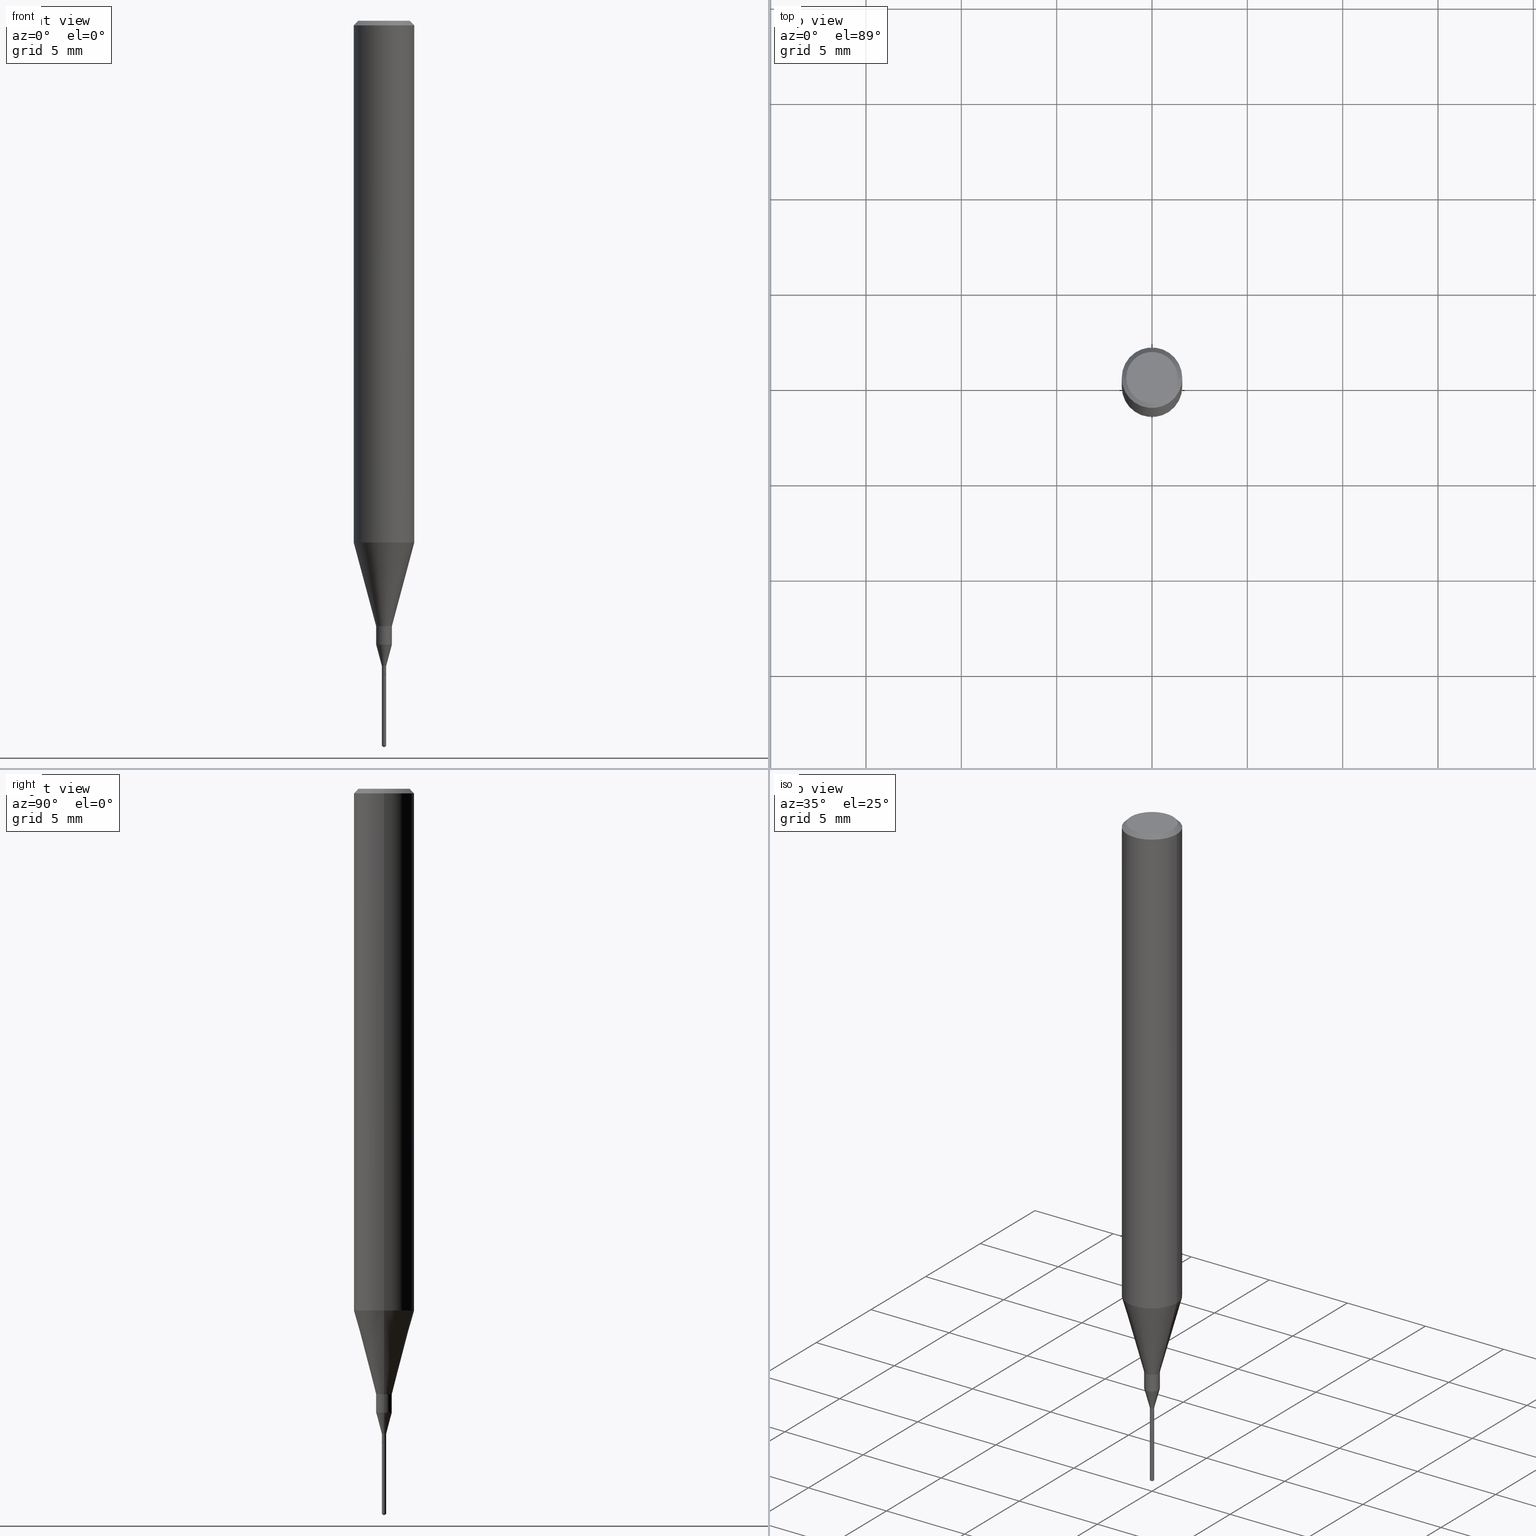
[diagram: canonical four-view strip — front | top / right | iso, engineering-drawing reading convention]
A machine part, canonical four-view strip (front | top / right | iso — engineering-drawing reading convention). The complete STEP part file that produces these views, byte-faithful:
ISO-10303-21;
HEADER;
FILE_DESCRIPTION (( 'STEP AP203' ),
    '1' );
FILE_NAME ('07251.STEP',
    '2024-04-19T13:30:23',
    ( '' ),
    ( '' ),
    'SwSTEP 2.0',
    'SolidWorks 2023',
    '' );
FILE_SCHEMA (( 'CONFIG_CONTROL_DESIGN' ));
ENDSEC;

DATA;
#1 = CARTESIAN_POINT ( 'NONE',  ( -0.06250000000000006939, 4.440892098500631092E-16, -3.074334431409319267E-30 ) ) ;
#2 = EDGE_CURVE ( 'NONE', #351, #134, #300, .T. ) ;
#3 = CARTESIAN_POINT ( 'NONE',  ( 3.662453960694578049E-29, -5.227175959681922416E-15, -1.497386256307230434 ) ) ;
#4 = DIRECTION ( 'NONE',  ( 1.000000000000000000, -6.982962677686288799E-15, 0.000000000000000000 ) ) ;
#5 = ORIENTED_EDGE ( 'NONE', *, *, #77, .T. ) ;
#6 = CARTESIAN_POINT ( 'NONE',  ( 2.634730117954813298E-29, -3.761696332605275695E-15, -1.077392650149939346 ) ) ;
#7 = CONICAL_SURFACE ( 'NONE', #142, 0.01625000000000000056, 0.2617993877991502405 ) ;
#8 = CARTESIAN_POINT ( 'NONE',  ( 3.300160153946842277E-29, -4.711754066768825092E-15, -1.349500000000000144 ) ) ;
#9 = CALENDAR_DATE ( 2024, 19, 4 ) ;
#10 = AXIS2_PLACEMENT_3D ( 'NONE', #449, #31, #233 ) ;
#11 = DIRECTION ( 'NONE',  ( 0.2588190451025214611, 1.565188264969621573E-15, 0.9659258262890682012 ) ) ;
#12 = CC_DESIGN_APPROVAL ( #526, ( #346 ) ) ;
#13 = ORIENTED_EDGE ( 'NONE', *, *, #156, .T. ) ;
#14 = DATE_TIME_ROLE ( 'creation_date' ) ;
#15 = EDGE_CURVE ( 'NONE', #275, #447, #563, .T. ) ;
#16 = DIRECTION ( 'NONE',  ( -2.445468806185136597E-29, 3.491481338843145583E-15, 1.000000000000000000 ) ) ;
#17 = EDGE_CURVE ( 'NONE', #530, #30, #250, .T. ) ;
#18 = DIRECTION ( 'NONE',  ( -2.445468806185136597E-29, 3.491481338843145583E-15, 1.000000000000000000 ) ) ;
#19 = DIRECTION ( 'NONE',  ( -2.445468806185136597E-29, 3.491481338843145583E-15, 1.000000000000000000 ) ) ;
#20 = DIRECTION ( 'NONE',  ( -2.445468806185136597E-29, 3.491481338843145583E-15, 1.000000000000000000 ) ) ;
#21 = ORIENTED_EDGE ( 'NONE', *, *, #193, .T. ) ;
#22 = ADVANCED_FACE ( 'NONE', ( #248 ), #409, .T. ) ;
#23 = AXIS2_PLACEMENT_3D ( 'NONE', #170, #64, #529 ) ;
#24 = CARTESIAN_POINT ( 'NONE',  ( 0.000000000000000000, 0.000000000000000000, 0.000000000000000000 ) ) ;
#25 = ORIENTED_EDGE ( 'NONE', *, *, #143, .F. ) ;
#26 = CLOSED_SHELL ( 'NONE', ( #521, #35, #270, #98, #556 ) ) ;
#27 = DIRECTION ( 'NONE',  ( 1.000000000000000000, -6.982962677686258033E-15, 0.000000000000000000 ) ) ;
#28 = AXIS2_PLACEMENT_3D ( 'NONE', #259, #115, #212 ) ;
#29 = DIRECTION ( 'NONE',  ( -6.982962677686266711E-15, -1.000000000000000000, 0.000000000000000000 ) ) ;
#30 = VERTEX_POINT ( 'NONE', #522 ) ;
#31 = DIRECTION ( 'NONE',  ( -2.445468806185136597E-29, 3.491481338843145583E-15, 1.000000000000000000 ) ) ;
#32 = DIRECTION ( 'NONE',  ( -6.982962677686265922E-15, -1.000000000000000000, 3.468864327941382011E-15 ) ) ;
#33 = ORIENTED_EDGE ( 'NONE', *, *, #236, .T. ) ;
#34 = CARTESIAN_POINT ( 'NONE',  ( -0.003850000000000000124, -4.686143912111482596E-15, -1.350000000000000089 ) ) ;
#35 = ADVANCED_FACE ( 'NONE', ( #99 ), #330, .T. ) ;
#36 = LINE ( 'NONE', #226, #164 ) ;
#37 = EDGE_LOOP ( 'NONE', ( #13, #177, #476, #360 ) ) ;
#38 = COORDINATED_UNIVERSAL_TIME_OFFSET ( 5, 0, .BEHIND. ) ;
#39 = EDGE_CURVE ( 'NONE', #134, #175, #306, .T. ) ;
#40 = DIRECTION ( 'NONE',  ( -2.449828643397946418E-29, 3.485237803807878340E-15, 1.000000000000000000 ) ) ;
#41 = AXIS2_PLACEMENT_3D ( 'NONE', #201, #468, #51 ) ;
#42 = AXIS2_PLACEMENT_3D ( 'NONE', #590, #508, #443 ) ;
#43 =( NAMED_UNIT ( * ) SI_UNIT ( $, .STERADIAN. ) SOLID_ANGLE_UNIT ( ) );
#44 = CONICAL_SURFACE ( 'NONE', #462, 0.003850000000000000124, 0.7853981633975427590 ) ;
#45 = ADVANCED_FACE ( 'NONE', ( #104 ), #517, .F. ) ;
#46 = LENGTH_MEASURE_WITH_UNIT ( LENGTH_MEASURE( 0.02539999999999999897 ), #461 );
#47 = DIRECTION ( 'NONE',  ( 6.090539988449877043E-15, 0.8571673007021278767, 0.5150380749100279543 ) ) ;
#48 = FACE_OUTER_BOUND ( 'NONE', #417, .T. ) ;
#49 = ADVANCED_FACE ( 'NONE', ( #348 ), #72, .T. ) ;
#50 = APPROVAL_PERSON_ORGANIZATION ( #395, #441, #469 ) ;
#51 = DIRECTION ( 'NONE',  ( 1.000000000000000000, -6.982962677686319564E-15, 0.000000000000000000 ) ) ;
#52 = VECTOR ( 'NONE', #501, 39.37007874015748143 ) ;
#53 = CYLINDRICAL_SURFACE ( 'NONE', #28, 0.004349999999999999700 ) ;
#54 = APPLICATION_PROTOCOL_DEFINITION ( 'international standard', 'config_control_design', 1994, #437 ) ;
#55 = DIRECTION ( 'NONE',  ( 1.000000000000000000, -6.982962677686220168E-15, 0.000000000000000000 ) ) ;
#56 = ORIENTED_EDGE ( 'NONE', *, *, #313, .T. ) ;
#57 = EDGE_CURVE ( 'NONE', #163, #183, #267, .T. ) ;
#58 = PERSON_AND_ORGANIZATION_ROLE ( 'creator' ) ;
#59 = VECTOR ( 'NONE', #47, 39.37007874015748854 ) ;
#60 = CARTESIAN_POINT ( 'NONE',  ( 3.090860900560097019E-17, 0.004349999999994771244, -1.497386256307230434 ) ) ;
#61 = VERTEX_POINT ( 'NONE', #105 ) ;
#62 = ORIENTED_EDGE ( 'NONE', *, *, #87, .F. ) ;
#63 = AXIS2_PLACEMENT_3D ( 'NONE', #513, #152, #154 ) ;
#64 = DIRECTION ( 'NONE',  ( -2.445468806185136597E-29, 3.491481338843145583E-15, 1.000000000000000000 ) ) ;
#65 = ORIENTED_EDGE ( 'NONE', *, *, #385, .F. ) ;
#66 = EDGE_CURVE ( 'NONE', #134, #61, #255, .T. ) ;
#67 = DIRECTION ( 'NONE',  ( -1.000000000000000000, 6.982962677686265922E-15, -4.876176775795935793E-29 ) ) ;
#68 = CONICAL_SURFACE ( 'NONE', #458, 0.01625000000000000056, 0.2617993877991502405 ) ;
#69 = CARTESIAN_POINT ( 'NONE',  ( -0.01624999999999999709, -4.315555863073202717E-15, -1.250000000000000000 ) ) ;
#70 = ORIENTED_EDGE ( 'NONE', *, *, #566, .T. ) ;
#71 = CC_DESIGN_APPROVAL ( #441, ( #331 ) ) ;
#72 = CONICAL_SURFACE ( 'NONE', #564, 0.06250000000000012490, 0.2617993877991501295 ) ;
#73 = DIRECTION ( 'NONE',  ( 1.000000000000000000, -6.982962677686220168E-15, 0.000000000000000000 ) ) ;
#74 = ORIENTED_EDGE ( 'NONE', *, *, #475, .F. ) ;
#75 = AXIS2_PLACEMENT_3D ( 'NONE', #272, #20, #405 ) ;
#76 = EDGE_LOOP ( 'NONE', ( #389, #440, #571, #88 ) ) ;
#77 = EDGE_CURVE ( 'NONE', #530, #364, #188, .T. ) ;
#78 = FACE_OUTER_BOUND ( 'NONE', #575, .T. ) ;
#79 = ORIENTED_EDGE ( 'NONE', *, *, #510, .T. ) ;
#80 = FACE_OUTER_BOUND ( 'NONE', #37, .T. ) ;
#81 = DIRECTION ( 'NONE',  ( 2.445468806185136597E-29, -3.491481338843145583E-15, -1.000000000000000000 ) ) ;
#82 = ORIENTED_EDGE ( 'NONE', *, *, #375, .T. ) ;
#83 = SHAPE_DEFINITION_REPRESENTATION ( #102, #589 ) ;
#84 = AXIS2_PLACEMENT_3D ( 'NONE', #333, #459, #380 ) ;
#85 = CARTESIAN_POINT ( 'NONE',  ( 3.056836007731421306E-29, -4.364351673553932471E-15, -1.250000000000000000 ) ) ;
#86 = CARTESIAN_POINT ( 'NONE',  ( 3.301382888349935078E-29, -4.713499807438246596E-15, -1.350000000000000089 ) ) ;
#87 = EDGE_CURVE ( 'NONE', #583, #412, #242, .T. ) ;
#88 = ORIENTED_EDGE ( 'NONE', *, *, #350, .F. ) ;
#89 = DIRECTION ( 'NONE',  ( -2.445468806185136597E-29, 3.491481338843145583E-15, 1.000000000000000000 ) ) ;
#90 = CARTESIAN_POINT ( 'NONE',  ( 2.292627005798580623E-31, -3.273263755165470801E-17, -0.009375000000000062103 ) ) ;
#91 = VECTOR ( 'NONE', #244, 39.37007874015748143 ) ;
#92 = DIRECTION ( 'NONE',  ( 0.2588190451025215166, 1.565188264969620784E-15, 0.9659258262890679791 ) ) ;
#93 = DIRECTION ( 'NONE',  ( 0.7071067811865454633, -7.319954787623248157E-15, -0.7071067811865495711 ) ) ;
#94 = EDGE_CURVE ( 'NONE', #312, #281, #309, .T. ) ;
#95 = LINE ( 'NONE', #514, #204 ) ;
#96 = DIRECTION ( 'NONE',  ( 1.000000000000000000, -6.982962677686265922E-15, 4.876176775795935793E-29 ) ) ;
#97 = CARTESIAN_POINT ( 'NONE',  ( -0.01624999999999999709, 1.154631945610162595E-16, -7.993269521664220284E-31 ) ) ;
#98 = ADVANCED_FACE ( 'NONE', ( #394 ), #53, .T. ) ;
#99 = FACE_OUTER_BOUND ( 'NONE', #520, .T. ) ;
#100 = APPROVAL_STATUS ( 'not_yet_approved' ) ;
#101 = CARTESIAN_POINT ( 'NONE',  ( 0.06250000000000012490, -4.198131499960668153E-15, -1.077392650149939346 ) ) ;
#102 = PRODUCT_DEFINITION_SHAPE ( 'NONE', 'NONE',  #346 ) ;
#103 = ADVANCED_FACE ( 'NONE', ( #570 ), #217, .F. ) ;
#104 = FACE_OUTER_BOUND ( 'NONE', #232, .T. ) ;
#105 = CARTESIAN_POINT ( 'NONE',  ( 0.06250000000000012490, -4.198131499960668153E-15, -1.077392650149939346 ) ) ;
#106 = EDGE_LOOP ( 'NONE', ( #406, #301, #374, #357 ) ) ;
#107 = PERSON_AND_ORGANIZATION ( #117, #391 ) ;
#108 = ADVANCED_FACE ( 'NONE', ( #577 ), #148, .T. ) ;
#109 = CARTESIAN_POINT ( 'NONE',  ( 0.01624999999999999709, -4.477824817066334148E-15, -1.250000000000000000 ) ) ;
#110 = CARTESIAN_POINT ( 'NONE',  ( 2.292627005798580623E-31, -3.273263755165470801E-17, -0.009375000000000062103 ) ) ;
#111 = CIRCLE ( 'NONE', #84, 0.05312499999999999861 ) ;
#112 = CARTESIAN_POINT ( 'NONE',  ( -3.037588764789863254E-17, -0.004350000000005226422, -1.497386256307230434 ) ) ;
#113 = ORIENTED_EDGE ( 'NONE', *, *, #66, .F. ) ;
#114 = AXIS2_PLACEMENT_3D ( 'NONE', #85, #588, #4 ) ;
#115 = DIRECTION ( 'NONE',  ( -2.449828643397946418E-29, 3.485237803807878340E-15, 1.000000000000000000 ) ) ;
#116 = EDGE_LOOP ( 'NONE', ( #404, #33, #414, #303 ) ) ;
#117 = PERSON ( 'UNSPECIFIED', 'UNSPECIFIED', 'UNSPECIFIED', ('UNSPECIFIED'), ('UNSPECIFIED'), ('UNSPECIFIED') ) ;
#118 = APPROVAL_DATE_TIME ( #358, #441 ) ;
#119 = VECTOR ( 'NONE', #149, 39.37007874015748143 ) ;
#120 = DIRECTION ( 'NONE',  ( 1.000000000000000000, -6.982962677686264344E-15, 0.000000000000000000 ) ) ;
#121 = EDGE_LOOP ( 'NONE', ( #5, #294 ) ) ;
#122 = LOCAL_TIME ( 9, 30, 23.00000000000000000, #38 ) ;
#123 = CARTESIAN_POINT ( 'NONE',  ( 3.301382888349935078E-29, -4.713499807438246596E-15, -1.350000000000000089 ) ) ;
#124 = ORIENTED_EDGE ( 'NONE', *, *, #135, .T. ) ;
#125 = CC_DESIGN_PERSON_AND_ORGANIZATION_ASSIGNMENT ( #298, #390, ( #150 ) ) ;
#126 = PERSON_AND_ORGANIZATION ( #117, #391 ) ;
#127 = LINE ( 'NONE', #328, #553 ) ;
#128 = CIRCLE ( 'NONE', #576, 0.004350000000000050875 ) ;
#129 = ORIENTED_EDGE ( 'NONE', *, *, #537, .T. ) ;
#130 = DATE_TIME_ROLE ( 'classification_date' ) ;
#131 = DIRECTION ( 'NONE',  ( 1.000000000000000000, -6.982962677686351908E-15, 0.000000000000000000 ) ) ;
#132 = AXIS2_PLACEMENT_3D ( 'NONE', #223, #398, #120 ) ;
#133 = CARTESIAN_POINT ( 'NONE',  ( -0.004350000000000050875, -4.651342440450035600E-15, -1.332599999999999785 ) ) ;
#134 = VERTEX_POINT ( 'NONE', #109 ) ;
#135 = EDGE_CURVE ( 'NONE', #273, #30, #466, .T. ) ;
#136 = ORIENTED_EDGE ( 'NONE', *, *, #532, .F. ) ;
#137 = DIRECTION ( 'NONE',  ( -2.449828643397946418E-29, 3.485237803807878340E-15, 1.000000000000000000 ) ) ;
#138 = VERTEX_POINT ( 'NONE', #112 ) ;
#139 = PLANE ( 'NONE',  #296 ) ;
#140 = DIRECTION ( 'NONE',  ( -6.982962677686266711E-15, -1.000000000000000000, 0.000000000000000000 ) ) ;
#141 = DIRECTION ( 'NONE',  ( 6.982962677686265922E-15, 1.000000000000000000, -3.485237803807878340E-15 ) ) ;
#142 = AXIS2_PLACEMENT_3D ( 'NONE', #496, #365, #27 ) ;
#143 = EDGE_CURVE ( 'NONE', #61, #325, #482, .T. ) ;
#144 = AXIS2_PLACEMENT_3D ( 'NONE', #264, #18, #533 ) ;
#145 = CARTESIAN_POINT ( 'NONE',  ( 2.292627005798580623E-31, -3.273263755165470801E-17, -0.009375000000000062103 ) ) ;
#146 = LINE ( 'NONE', #291, #229 ) ;
#147 = AXIS2_PLACEMENT_3D ( 'NONE', #471, #196, #344 ) ;
#148 = CONICAL_SURFACE ( 'NONE', #132, 0.06250000000000012490, 0.2617993877991501295 ) ;
#149 = DIRECTION ( 'NONE',  ( -2.445468806185136877E-29, 3.491481338843145188E-15, 1.000000000000000000 ) ) ;
#150 = PRODUCT ( '07251', '07251', '', ( #518 ) ) ;
#151 = DIRECTION ( 'NONE',  ( 1.000000000000000000, -6.982962677686319564E-15, 0.000000000000000000 ) ) ;
#152 = DIRECTION ( 'NONE',  ( -2.445468806185136597E-29, 3.491481338843145583E-15, 1.000000000000000000 ) ) ;
#153 = AXIS2_PLACEMENT_3D ( 'NONE', #274, #16, #308 ) ;
#154 = DIRECTION ( 'NONE',  ( 1.000000000000000000, -6.982962677686266711E-15, 4.875930095424100059E-29 ) ) ;
#155 = MANIFOLD_SOLID_BREP ( 'Body-Move/Copy2[1]', #26 ) ;
#156 = EDGE_CURVE ( 'NONE', #351, #179, #338, .T. ) ;
#157 = CIRCLE ( 'NONE', #572, 0.004349999999999997966 ) ;
#158 = EDGE_CURVE ( 'NONE', #183, #163, #442, .T. ) ;
#159 = EDGE_CURVE ( 'NONE', #179, #351, #276, .T. ) ;
#160 = CYLINDRICAL_SURFACE ( 'NONE', #337, 0.06250000000000006939 ) ;
#161 = CARTESIAN_POINT ( 'NONE',  ( 3.674846187787069844E-29, -5.227856705711817904E-15, -1.500000000000000222 ) ) ;
#162 = CALENDAR_DATE ( 2024, 19, 4 ) ;
#163 = VERTEX_POINT ( 'NONE', #528 ) ;
#164 = VECTOR ( 'NONE', #280, 39.37007874015748143 ) ;
#165 = ORIENTED_EDGE ( 'NONE', *, *, #537, .F. ) ;
#166 = CARTESIAN_POINT ( 'NONE',  ( 7.076796394983739835E-47, -1.010378970665454992E-32, -2.893840386385196200E-18 ) ) ;
#167 = PERSON_AND_ORGANIZATION_ROLE ( 'design_supplier' ) ;
#168 = EDGE_LOOP ( 'NONE', ( #515, #21, #263, #65 ) ) ;
#169 = VECTOR ( 'NONE', #586, 39.37007874015748143 ) ;
#170 = CARTESIAN_POINT ( 'NONE',  ( 3.150225026509521316E-29, -4.497686441714505334E-15, -1.288188595389930580 ) ) ;
#171 = ORIENTED_EDGE ( 'NONE', *, *, #77, .F. ) ;
#172 = DIRECTION ( 'NONE',  ( -6.982962677686266711E-15, -1.000000000000000000, 0.000000000000000000 ) ) ;
#173 = ORIENTED_EDGE ( 'NONE', *, *, #2, .T. ) ;
#174 = APPROVAL ( #499, 'UNSPECIFIED' ) ;
#175 = VERTEX_POINT ( 'NONE', #69 ) ;
#176 = DIRECTION ( 'NONE',  ( -5.985567269336039098E-15, -0.8571673007021243240, 0.5150380749100339495 ) ) ;
#177 = ORIENTED_EDGE ( 'NONE', *, *, #557, .T. ) ;
#178 = LINE ( 'NONE', #546, #252 ) ;
#179 = VERTEX_POINT ( 'NONE', #262 ) ;
#180 = CARTESIAN_POINT ( 'NONE',  ( 3.258831731122312537E-29, -4.652748032142375116E-15, -1.332599999999999785 ) ) ;
#181 = ADVANCED_FACE ( 'NONE', ( #433 ), #435, .T. ) ;
#182 = DIRECTION ( 'NONE',  ( -1.000000000000000000, 6.982962677686266711E-15, 0.000000000000000000 ) ) ;
#183 = VERTEX_POINT ( 'NONE', #402 ) ;
#184 = CLOSED_SHELL ( 'NONE', ( #452, #432, #49, #495, #326, #261, #22, #45, #202, #200, #487, #181, #108, #579, #392, #103 ) ) ;
#185 = ORIENTED_EDGE ( 'NONE', *, *, #418, .F. ) ;
#186 = AXIS2_PLACEMENT_3D ( 'NONE', #558, #430, #387 ) ;
#187 = CARTESIAN_POINT ( 'NONE',  ( 0.004350000000000021384, -3.037588764793541318E-17, 2.121136897471242730E-31 ) ) ;
#188 = CIRCLE ( 'NONE', #63, 0.05312499999999999861 ) ;
#189 = DIRECTION ( 'NONE',  ( -6.982962677686266711E-15, -1.000000000000000000, 0.000000000000000000 ) ) ;
#190 = DIMENSIONAL_EXPONENTS ( 1.000000000000000000, 0.000000000000000000, 0.000000000000000000, 0.000000000000000000, 0.000000000000000000, 0.000000000000000000, 0.000000000000000000 ) ;
#191 = CARTESIAN_POINT ( 'NONE',  ( -0.003850000000000000124, -4.683494684937371395E-15, -1.350000000000000089 ) ) ;
#192 = CARTESIAN_POINT ( 'NONE',  ( -9.278108940561071411E-28, 1.319778012860802633E-13, 37.87007874015748143 ) ) ;
#193 = EDGE_CURVE ( 'NONE', #447, #138, #396, .T. ) ;
#194 = DIRECTION ( 'NONE',  ( -2.438088387897960049E-29, 3.491481338843145188E-15, 1.000000000000000000 ) ) ;
#195 = LINE ( 'NONE', #1, #91 ) ;
#196 = DIRECTION ( 'NONE',  ( -2.449828643397946418E-29, 3.485237803807878340E-15, 1.000000000000000000 ) ) ;
#197 = FACE_OUTER_BOUND ( 'NONE', #523, .T. ) ;
#198 = APPLICATION_CONTEXT ( 'configuration controlled 3d designs of mechanical parts and assemblies' ) ;
#199 = CONICAL_SURFACE ( 'NONE', #512, 65.52281426577243906, 1.029744258676681401 ) ;
#200 = ADVANCED_FACE ( 'NONE', ( #359 ), #485, .T. ) ;
#201 = CARTESIAN_POINT ( 'NONE',  ( 3.301382888349935078E-29, -4.713499807438246596E-15, -1.350000000000000089 ) ) ;
#202 = ADVANCED_FACE ( 'NONE', ( #535 ), #44, .T. ) ;
#203 = DIRECTION ( 'NONE',  ( -2.445468806185136597E-29, 3.491481338843145583E-15, 1.000000000000000000 ) ) ;
#204 = VECTOR ( 'NONE', #92, 39.37007874015748143 ) ;
#205 = DATE_AND_TIME ( #9, #581 ) ;
#206 = AXIS2_PLACEMENT_3D ( 'NONE', #431, #203, #427 ) ;
#207 = DIRECTION ( 'NONE',  ( 1.000000000000000000, -6.982962677686351908E-15, 0.000000000000000000 ) ) ;
#208 = AXIS2_PLACEMENT_3D ( 'NONE', #166, #352, #67 ) ;
#209 = ORIENTED_EDGE ( 'NONE', *, *, #516, .T. ) ;
#210 = COORDINATED_UNIVERSAL_TIME_OFFSET ( 5, 0, .BEHIND. ) ;
#211 = FACE_OUTER_BOUND ( 'NONE', #540, .T. ) ;
#212 = DIRECTION ( 'NONE',  ( -6.982962677686265133E-15, -1.000000000000000000, 0.000000000000000000 ) ) ;
#213 = CIRCLE ( 'NONE', #424, 0.004349999999999999700 ) ;
#214 = CONICAL_SURFACE ( 'NONE', #415, 0.06250000000000000000, 0.7853981633974453924 ) ;
#215 = CC_DESIGN_DATE_AND_TIME_ASSIGNMENT ( #257, #14, ( #346 ) ) ;
#216 = ORIENTED_EDGE ( 'NONE', *, *, #385, .T. ) ;
#217 = PLANE ( 'NONE',  #208 ) ;
#218 = EDGE_LOOP ( 'NONE', ( #224, #70, #25, #113 ) ) ;
#219 = DIRECTION ( 'NONE',  ( 1.000000000000000000, -6.982962677686267499E-15, 4.876176775795936353E-29 ) ) ;
#220 = EDGE_LOOP ( 'NONE', ( #481, #465, #578, #185 ) ) ;
#221 = AXIS2_PLACEMENT_3D ( 'NONE', #335, #422, #511 ) ;
#222 = EDGE_CURVE ( 'NONE', #587, #453, #213, .T. ) ;
#223 = CARTESIAN_POINT ( 'NONE',  ( 2.634730117954813298E-29, -3.761696332605275695E-15, -1.077392650149939346 ) ) ;
#224 = ORIENTED_EDGE ( 'NONE', *, *, #39, .T. ) ;
#225 = DIRECTION ( 'NONE',  ( 2.445468806185136597E-29, -3.491481338843145583E-15, -1.000000000000000000 ) ) ;
#226 = CARTESIAN_POINT ( 'NONE',  ( 3.090860900559736485E-17, 0.004349999999995285589, -1.350000000000000089 ) ) ;
#227 = ORIENTED_EDGE ( 'NONE', *, *, #313, .F. ) ;
#228 = CC_DESIGN_APPROVAL ( #174, ( #290 ) ) ;
#229 = VECTOR ( 'NONE', #504, 39.37007874015747433 ) ;
#230 = EDGE_CURVE ( 'NONE', #447, #453, #36, .T. ) ;
#231 = DIRECTION ( 'NONE',  ( -2.445468806185136597E-29, 3.491481338843145583E-15, 1.000000000000000000 ) ) ;
#232 = EDGE_LOOP ( 'NONE', ( #371, #62 ) ) ;
#233 = DIRECTION ( 'NONE',  ( 1.000000000000000000, -6.982962677686267499E-15, 4.876176775795936353E-29 ) ) ;
#234 = CARTESIAN_POINT ( 'NONE',  ( 3.662971404622334007E-29, -5.244714250307038079E-15, -1.500000000000000222 ) ) ;
#235 = EDGE_LOOP ( 'NONE', ( #227, #269, #129, #434 ) ) ;
#236 = EDGE_CURVE ( 'NONE', #163, #312, #420, .T. ) ;
#237 = DIRECTION ( 'NONE',  ( 0.000000000000000000, 0.000000000000000000, 1.000000000000000000 ) ) ;
#238 = DIRECTION ( 'NONE',  ( -2.449828643397946418E-29, 3.485237803807878340E-15, 1.000000000000000000 ) ) ;
#239 = ORIENTED_EDGE ( 'NONE', *, *, #159, .T. ) ;
#240 = APPROVAL_DATE_TIME ( #503, #174 ) ;
#241 = DIRECTION ( 'NONE',  ( -2.445468806185136877E-29, 3.491481338843145188E-15, 1.000000000000000000 ) ) ;
#242 = CIRCLE ( 'NONE', #41, 0.003850000000000000124 ) ;
#243 = CARTESIAN_POINT ( 'NONE',  ( 3.150225026509521316E-29, -4.497686441714505334E-15, -1.288188595389930580 ) ) ;
#244 = DIRECTION ( 'NONE',  ( -2.445468806185136877E-29, 3.491481338843145188E-15, 1.000000000000000000 ) ) ;
#245 = CC_DESIGN_PERSON_AND_ORGANIZATION_ASSIGNMENT ( #345, #58, ( #346 ) ) ;
#246 = AXIS2_PLACEMENT_3D ( 'NONE', #574, #439, #172 ) ;
#247 = LINE ( 'NONE', #97, #484 ) ;
#248 = FACE_OUTER_BOUND ( 'NONE', #525, .T. ) ;
#249 = LOCAL_TIME ( 9, 30, 23.00000000000000000, #460 ) ;
#250 = LINE ( 'NONE', #382, #408 ) ;
#251 = AXIS2_PLACEMENT_3D ( 'NONE', #145, #373, #284 ) ;
#252 = VECTOR ( 'NONE', #93, 39.37007874015748143 ) ;
#253 = DIRECTION ( 'NONE',  ( -2.445468806185136597E-29, 3.491481338843145583E-15, 1.000000000000000000 ) ) ;
#254 = PERSON_AND_ORGANIZATION ( #117, #391 ) ;
#255 = LINE ( 'NONE', #101, #383 ) ;
#256 = ORIENTED_EDGE ( 'NONE', *, *, #156, .F. ) ;
#257 = DATE_AND_TIME ( #162, #316 ) ;
#258 = AXIS2_PLACEMENT_3D ( 'NONE', #332, #237, #419 ) ;
#259 = CARTESIAN_POINT ( 'NONE',  ( 3.301382888349935078E-29, -4.713499807438246596E-15, -1.350000000000000089 ) ) ;
#260 = PERSON_AND_ORGANIZATION ( #117, #391 ) ;
#261 = ADVANCED_FACE ( 'NONE', ( #378 ), #370, .T. ) ;
#262 = CARTESIAN_POINT ( 'NONE',  ( -0.01625000000000000056, -4.382223247153489148E-15, -1.288188595389930580 ) ) ;
#263 = ORIENTED_EDGE ( 'NONE', *, *, #418, .T. ) ;
#264 = CARTESIAN_POINT ( 'NONE',  ( 3.150225026509521316E-29, -4.497686441714505334E-15, -1.288188595389930580 ) ) ;
#265 = ORIENTED_EDGE ( 'NONE', *, *, #410, .F. ) ;
#266 = EDGE_CURVE ( 'NONE', #364, #273, #178, .T. ) ;
#267 = CIRCLE ( 'NONE', #478, 0.004349999999999993629 ) ;
#268 = CARTESIAN_POINT ( 'NONE',  ( 0.000000000000000000, 0.000000000000000000, 0.000000000000000000 ) ) ;
#269 = ORIENTED_EDGE ( 'NONE', *, *, #94, .T. ) ;
#270 = ADVANCED_FACE ( 'NONE', ( #78 ), #199, .T. ) ;
#271 = AXIS2_PLACEMENT_3D ( 'NONE', #90, #81, #182 ) ;
#272 = CARTESIAN_POINT ( 'NONE',  ( 0.000000000000000000, 0.000000000000000000, 0.000000000000000000 ) ) ;
#273 = VERTEX_POINT ( 'NONE', #416 ) ;
#274 = CARTESIAN_POINT ( 'NONE',  ( 2.292627005798580623E-31, -3.273263755165470801E-17, -0.009375000000000062103 ) ) ;
#275 = VERTEX_POINT ( 'NONE', #539 ) ;
#276 = CIRCLE ( 'NONE', #23, 0.01625000000000000056 ) ;
#277 = CARTESIAN_POINT ( 'NONE',  ( 3.301382888349935078E-29, -4.713499807438246596E-15, -1.350000000000000089 ) ) ;
#278 = ORIENTED_EDGE ( 'NONE', *, *, #375, .F. ) ;
#279 = CYLINDRICAL_SURFACE ( 'NONE', #10, 0.01624999999999999709 ) ;
#280 = DIRECTION ( 'NONE',  ( -2.449828643397946418E-29, 3.485237803807878340E-15, 1.000000000000000000 ) ) ;
#281 = VERTEX_POINT ( 'NONE', #411 ) ;
#282 = CALENDAR_DATE ( 2024, 19, 4 ) ;
#283 = LINE ( 'NONE', #34, #403 ) ;
#284 = DIRECTION ( 'NONE',  ( 1.000000000000000000, -6.982962677686266711E-15, 0.000000000000000000 ) ) ;
#285 = ORIENTED_EDGE ( 'NONE', *, *, #410, .T. ) ;
#286 = DIRECTION ( 'NONE',  ( 2.449828643397946138E-29, -3.485237803807878340E-15, -1.000000000000000000 ) ) ;
#287 = AXIS2_PLACEMENT_3D ( 'NONE', #372, #474, #151 ) ;
#288 = CARTESIAN_POINT ( 'NONE',  ( -3.037588764790223788E-17, -0.004350000000004712944, -1.350000000000000089 ) ) ;
#289 = CC_DESIGN_PERSON_AND_ORGANIZATION_ASSIGNMENT ( #126, #450, ( #331 ) ) ;
#290 = SECURITY_CLASSIFICATION ( '', '', #479 ) ;
#291 = CARTESIAN_POINT ( 'NONE',  ( -0.06250000000000012490, -3.317607122755211895E-15, -1.077392650149939346 ) ) ;
#292 =( CONVERSION_BASED_UNIT ( 'INCH', #46 ) LENGTH_UNIT ( ) NAMED_UNIT ( #190 ) );
#293 = FACE_OUTER_BOUND ( 'NONE', #76, .T. ) ;
#294 = ORIENTED_EDGE ( 'NONE', *, *, #305, .T. ) ;
#295 = CARTESIAN_POINT ( 'NONE',  ( -3.037588764790224404E-17, -0.004350000000004713811, -1.350000000000000089 ) ) ;
#296 = AXIS2_PLACEMENT_3D ( 'NONE', #379, #286, #141 ) ;
#297 = DIRECTION ( 'NONE',  ( -2.445468806185136597E-29, 3.491481338843145583E-15, 1.000000000000000000 ) ) ;
#298 = PERSON_AND_ORGANIZATION ( #117, #391 ) ;
#299 = CIRCLE ( 'NONE', #114, 0.01624999999999999709 ) ;
#300 = LINE ( 'NONE', #567, #119 ) ;
#301 = ORIENTED_EDGE ( 'NONE', *, *, #531, .T. ) ;
#302 = APPROVAL_ROLE ( '' ) ;
#303 = ORIENTED_EDGE ( 'NONE', *, *, #516, .F. ) ;
#304 = AXIS2_PLACEMENT_3D ( 'NONE', #277, #497, #29 ) ;
#305 = EDGE_CURVE ( 'NONE', #364, #530, #111, .T. ) ;
#306 = CIRCLE ( 'NONE', #206, 0.01624999999999999709 ) ;
#307 = LOCAL_TIME ( 9, 30, 23.00000000000000000, #210 ) ;
#308 = DIRECTION ( 'NONE',  ( 1.000000000000000000, -6.982962677686266711E-15, 0.000000000000000000 ) ) ;
#309 = CIRCLE ( 'NONE', #319, 0.004350000000000050875 ) ;
#310 = ORIENTED_EDGE ( 'NONE', *, *, #222, .T. ) ;
#311 = CARTESIAN_POINT ( 'NONE',  ( 3.090860900560100101E-17, 0.004349999999995286457, -1.350000000000000089 ) ) ;
#312 = VERTEX_POINT ( 'NONE', #133 ) ;
#313 = EDGE_CURVE ( 'NONE', #312, #179, #582, .T. ) ;
#314 =( GEOMETRIC_REPRESENTATION_CONTEXT ( 3 ) GLOBAL_UNCERTAINTY_ASSIGNED_CONTEXT ( ( #315 ) ) GLOBAL_UNIT_ASSIGNED_CONTEXT ( ( #292, #555, #43 ) ) REPRESENTATION_CONTEXT ( 'NONE', 'WORKASPACE' ) );
#315 = UNCERTAINTY_MEASURE_WITH_UNIT (LENGTH_MEASURE( 1.000000000000000082E-05 ), #292, 'distance_accuracy_value', 'NONE');
#316 = LOCAL_TIME ( 9, 30, 23.00000000000000000, #565 ) ;
#317 = DIRECTION ( 'NONE',  ( -2.445468806185136597E-29, 3.491481338843145583E-15, 1.000000000000000000 ) ) ;
#318 = ORIENTED_EDGE ( 'NONE', *, *, #531, .F. ) ;
#319 = AXIS2_PLACEMENT_3D ( 'NONE', #426, #470, #207 ) ;
#320 = CIRCLE ( 'NONE', #42, 0.06250000000000012490 ) ;
#321 = DIRECTION ( 'NONE',  ( -2.445468806185136597E-29, 3.491481338843145583E-15, 1.000000000000000000 ) ) ;
#322 = EDGE_LOOP ( 'NONE', ( #536, #56, #256, #165 ) ) ;
#323 = DESIGN_CONTEXT ( 'detailed design', #437, 'design' ) ;
#324 = CARTESIAN_POINT ( 'NONE',  ( -0.01625000000000000056, -4.382223247153489148E-15, -1.288188595389930580 ) ) ;
#325 = VERTEX_POINT ( 'NONE', #446 ) ;
#326 = ADVANCED_FACE ( 'NONE', ( #423 ), #68, .T. ) ;
#327 = LINE ( 'NONE', #407, #388 ) ;
#328 = CARTESIAN_POINT ( 'NONE',  ( 0.06250000000000006939, -4.364351673553921624E-16, 3.047610484872463374E-30 ) ) ;
#329 = ORIENTED_EDGE ( 'NONE', *, *, #550, .F. ) ;
#330 = CONICAL_SURFACE ( 'NONE', #147, 65.52281426577243906, 1.029744258676681401 ) ;
#331 = PRODUCT_DEFINITION_FORMATION_WITH_SPECIFIED_SOURCE ( 'ANY', '', #150, .NOT_KNOWN. ) ;
#332 = CARTESIAN_POINT ( 'NONE',  ( 0.000000000000000000, 0.000000000000000000, 0.000000000000000000 ) ) ;
#333 = CARTESIAN_POINT ( 'NONE',  ( 1.415359278996747967E-46, -2.020757941330909984E-32, -5.787680772770392401E-18 ) ) ;
#334 = EDGE_LOOP ( 'NONE', ( #136, #585, #498, #547 ) ) ;
#335 = CARTESIAN_POINT ( 'NONE',  ( 3.301382888349935078E-29, -4.713499807438246596E-15, -1.350000000000000089 ) ) ;
#336 = LINE ( 'NONE', #234, #562 ) ;
#337 = AXIS2_PLACEMENT_3D ( 'NONE', #393, #349, #445 ) ;
#338 = CIRCLE ( 'NONE', #144, 0.01625000000000000056 ) ;
#339 = LINE ( 'NONE', #288, #401 ) ;
#340 = CC_DESIGN_SECURITY_CLASSIFICATION ( #290, ( #331 ) ) ;
#341 = EDGE_CURVE ( 'NONE', #138, #447, #157, .T. ) ;
#342 = CARTESIAN_POINT ( 'NONE',  ( 3.301382888349935078E-29, -4.713499807438246596E-15, -1.350000000000000089 ) ) ;
#343 = APPLICATION_PROTOCOL_DEFINITION ( 'international standard', 'config_control_design', 1994, #198 ) ;
#344 = DIRECTION ( 'NONE',  ( -6.982962677686265922E-15, -1.000000000000000000, 3.468864327941382011E-15 ) ) ;
#345 = PERSON_AND_ORGANIZATION ( #117, #391 ) ;
#346 = PRODUCT_DEFINITION ( 'UNKNOWN', '', #331, #323 ) ;
#347 = DIRECTION ( 'NONE',  ( -0.7071067811865454633, 2.468850131082235367E-15, -0.7071067811865495711 ) ) ;
#348 = FACE_OUTER_BOUND ( 'NONE', #218, .T. ) ;
#349 = DIRECTION ( 'NONE',  ( -2.445468806185136597E-29, 3.491481338843145583E-15, 1.000000000000000000 ) ) ;
#350 = EDGE_CURVE ( 'NONE', #61, #273, #127, .T. ) ;
#351 = VERTEX_POINT ( 'NONE', #543 ) ;
#352 = DIRECTION ( 'NONE',  ( 2.438088387897960049E-29, -3.491481338843145188E-15, -1.000000000000000000 ) ) ;
#353 = ORIENTED_EDGE ( 'NONE', *, *, #57, .T. ) ;
#354 = DIRECTION ( 'NONE',  ( -2.445468806185136597E-29, 3.491481338843145583E-15, 1.000000000000000000 ) ) ;
#355 = EDGE_LOOP ( 'NONE', ( #397, #353, #209, #472 ) ) ;
#356 = CONICAL_SURFACE ( 'NONE', #271, 0.06250000000000000000, 0.7853981633974453924 ) ;
#357 = ORIENTED_EDGE ( 'NONE', *, *, #425, .F. ) ;
#358 = DATE_AND_TIME ( #386, #307 ) ;
#359 = FACE_OUTER_BOUND ( 'NONE', #355, .T. ) ;
#360 = ORIENTED_EDGE ( 'NONE', *, *, #2, .F. ) ;
#361 = CIRCLE ( 'NONE', #287, 0.003850000000000000124 ) ;
#362 = APPROVAL_PERSON_ORGANIZATION ( #541, #174, #506 ) ;
#363 = DIRECTION ( 'NONE',  ( 1.000000000000000000, -6.982962677686264344E-15, 0.000000000000000000 ) ) ;
#364 = VERTEX_POINT ( 'NONE', #505 ) ;
#365 = DIRECTION ( 'NONE',  ( -2.445468806185136597E-29, 3.491481338843145583E-15, 1.000000000000000000 ) ) ;
#366 = DIRECTION ( 'NONE',  ( -2.449828643397946418E-29, 3.485237803807878340E-15, 1.000000000000000000 ) ) ;
#367 = ORIENTED_EDGE ( 'NONE', *, *, #341, .F. ) ;
#368 = CC_DESIGN_DATE_AND_TIME_ASSIGNMENT ( #369, #130, ( #290 ) ) ;
#369 = DATE_AND_TIME ( #282, #249 ) ;
#370 = CYLINDRICAL_SURFACE ( 'NONE', #489, 0.004350000000000021384 ) ;
#371 = ORIENTED_EDGE ( 'NONE', *, *, #510, .F. ) ;
#372 = CARTESIAN_POINT ( 'NONE',  ( 3.301382888349935078E-29, -4.713499807438246596E-15, -1.350000000000000089 ) ) ;
#373 = DIRECTION ( 'NONE',  ( -2.445468806185136597E-29, 3.491481338843145583E-15, 1.000000000000000000 ) ) ;
#374 = ORIENTED_EDGE ( 'NONE', *, *, #66, .T. ) ;
#375 = EDGE_CURVE ( 'NONE', #275, #138, #336, .T. ) ;
#376 = PERSON_AND_ORGANIZATION_ROLE ( 'classification_officer' ) ;
#377 = DIRECTION ( 'NONE',  ( -2.445468806185136877E-29, 3.491481338843145188E-15, 1.000000000000000000 ) ) ;
#378 = FACE_OUTER_BOUND ( 'NONE', #116, .T. ) ;
#379 = CARTESIAN_POINT ( 'NONE',  ( 3.301382888349935078E-29, -4.713499807438246596E-15, -1.350000000000000089 ) ) ;
#380 = DIRECTION ( 'NONE',  ( 1.000000000000000000, -6.982962677686266711E-15, 4.875930095424100059E-29 ) ) ;
#381 = CARTESIAN_POINT ( 'NONE',  ( -0.05312499999999999861, 3.873362110279099094E-16, -5.787680772773044021E-18 ) ) ;
#382 = CARTESIAN_POINT ( 'NONE',  ( -0.06250000000000000000, 4.037025298037369984E-16, -0.009375000000000062103 ) ) ;
#383 = VECTOR ( 'NONE', #11, 39.37007874015747433 ) ;
#384 = ORIENTED_EDGE ( 'NONE', *, *, #17, .T. ) ;
#385 = EDGE_CURVE ( 'NONE', #453, #587, #467, .T. ) ;
#386 = CALENDAR_DATE ( 2024, 19, 4 ) ;
#387 = DIRECTION ( 'NONE',  ( 1.000000000000000000, -6.982962677686319564E-15, 0.000000000000000000 ) ) ;
#388 = VECTOR ( 'NONE', #568, 39.37007874015748143 ) ;
#389 = ORIENTED_EDGE ( 'NONE', *, *, #143, .T. ) ;
#390 = PERSON_AND_ORGANIZATION_ROLE ( 'design_owner' ) ;
#391 = ORGANIZATION ( 'UNSPECIFIED', 'UNSPECIFIED', '' ) ;
#392 = ADVANCED_FACE ( 'NONE', ( #413 ), #356, .T. ) ;
#393 = CARTESIAN_POINT ( 'NONE',  ( 0.000000000000000000, 0.000000000000000000, 0.000000000000000000 ) ) ;
#394 = FACE_OUTER_BOUND ( 'NONE', #168, .T. ) ;
#395 = PERSON_AND_ORGANIZATION ( #117, #391 ) ;
#396 = CIRCLE ( 'NONE', #246, 0.004349999999999997966 ) ;
#397 = ORIENTED_EDGE ( 'NONE', *, *, #236, .F. ) ;
#398 = DIRECTION ( 'NONE',  ( -2.445468806185136597E-29, 3.491481338843145583E-15, 1.000000000000000000 ) ) ;
#399 = ORIENTED_EDGE ( 'NONE', *, *, #15, .T. ) ;
#400 = AXIS2_PLACEMENT_3D ( 'NONE', #342, #194, #96 ) ;
#401 = VECTOR ( 'NONE', #238, 39.37007874015748143 ) ;
#402 = CARTESIAN_POINT ( 'NONE',  ( 0.004349999999999993629, -4.742129954416760832E-15, -1.349500000000000144 ) ) ;
#403 = VECTOR ( 'NONE', #552, 39.37007874015748143 ) ;
#404 = ORIENTED_EDGE ( 'NONE', *, *, #158, .T. ) ;
#405 = DIRECTION ( 'NONE',  ( 1.000000000000000000, -6.982962677686267499E-15, 4.876176775795936353E-29 ) ) ;
#406 = ORIENTED_EDGE ( 'NONE', *, *, #566, .F. ) ;
#407 = CARTESIAN_POINT ( 'NONE',  ( 0.003850000000000000124, -4.740384213747338540E-15, -1.350000000000000089 ) ) ;
#408 = VECTOR ( 'NONE', #347, 39.37007874015748143 ) ;
#409 = CONICAL_SURFACE ( 'NONE', #186, 0.003850000000000000124, 0.7853981633975427590 ) ;
#410 = EDGE_CURVE ( 'NONE', #30, #273, #488, .T. ) ;
#411 = CARTESIAN_POINT ( 'NONE',  ( 0.004350000000000050875, -4.683123919790311645E-15, -1.332599999999999785 ) ) ;
#412 = VERTEX_POINT ( 'NONE', #455 ) ;
#413 = FACE_OUTER_BOUND ( 'NONE', #492, .T. ) ;
#414 = ORIENTED_EDGE ( 'NONE', *, *, #448, .F. ) ;
#415 = AXIS2_PLACEMENT_3D ( 'NONE', #110, #225, #538 ) ;
#416 = CARTESIAN_POINT ( 'NONE',  ( 0.06250000000000000000, -4.691678049070463404E-16, -0.009375000000000062103 ) ) ;
#417 = EDGE_LOOP ( 'NONE', ( #329, #421, #519, #265 ) ) ;
#418 = EDGE_CURVE ( 'NONE', #138, #587, #339, .T. ) ;
#419 = DIRECTION ( 'NONE',  ( 1.000000000000000000, 0.000000000000000000, 0.000000000000000000 ) ) ;
#420 = LINE ( 'NONE', #584, #52 ) ;
#421 = ORIENTED_EDGE ( 'NONE', *, *, #425, .T. ) ;
#422 = DIRECTION ( 'NONE',  ( -2.449828643397946418E-29, 3.485237803807878340E-15, 1.000000000000000000 ) ) ;
#423 = FACE_OUTER_BOUND ( 'NONE', #322, .T. ) ;
#424 = AXIS2_PLACEMENT_3D ( 'NONE', #86, #366, #189 ) ;
#425 = EDGE_CURVE ( 'NONE', #325, #61, #320, .T. ) ;
#426 = CARTESIAN_POINT ( 'NONE',  ( 3.258831731122312537E-29, -4.652748032142375116E-15, -1.332599999999999785 ) ) ;
#427 = DIRECTION ( 'NONE',  ( 1.000000000000000000, -6.982962677686288799E-15, 0.000000000000000000 ) ) ;
#428 = APPROVAL_STATUS ( 'not_yet_approved' ) ;
#429 = VECTOR ( 'NONE', #241, 39.37007874015748143 ) ;
#430 = DIRECTION ( 'NONE',  ( -2.445468806185136597E-29, 3.491481338843145583E-15, 1.000000000000000000 ) ) ;
#431 = CARTESIAN_POINT ( 'NONE',  ( 3.056836007731421306E-29, -4.364351673553932471E-15, -1.250000000000000000 ) ) ;
#432 = ADVANCED_FACE ( 'NONE', ( #293 ), #160, .T. ) ;
#433 = FACE_OUTER_BOUND ( 'NONE', #477, .T. ) ;
#434 = ORIENTED_EDGE ( 'NONE', *, *, #159, .F. ) ;
#435 = CYLINDRICAL_SURFACE ( 'NONE', #490, 0.01624999999999999709 ) ;
#436 = ORIENTED_EDGE ( 'NONE', *, *, #17, .F. ) ;
#437 = APPLICATION_CONTEXT ( 'configuration controlled 3d designs of mechanical parts and assemblies' ) ;
#438 = MANIFOLD_SOLID_BREP ( 'Body-Move/Copy2[2]', #184 ) ;
#439 = DIRECTION ( 'NONE',  ( -2.449828643397946418E-29, 3.485237803807878340E-15, 1.000000000000000000 ) ) ;
#440 = ORIENTED_EDGE ( 'NONE', *, *, #550, .T. ) ;
#441 = APPROVAL ( #100, 'UNSPECIFIED' ) ;
#442 = CIRCLE ( 'NONE', #524, 0.004349999999999993629 ) ;
#443 = DIRECTION ( 'NONE',  ( 1.000000000000000000, -6.982962677686264344E-15, 0.000000000000000000 ) ) ;
#444 = ORIENTED_EDGE ( 'NONE', *, *, #158, .F. ) ;
#445 = DIRECTION ( 'NONE',  ( 1.000000000000000000, -6.982962677686266711E-15, 4.876176775795935793E-29 ) ) ;
#446 = CARTESIAN_POINT ( 'NONE',  ( -0.06250000000000012490, -3.317607122755211895E-15, -1.077392650149939346 ) ) ;
#447 = VERTEX_POINT ( 'NONE', #60 ) ;
#448 = EDGE_CURVE ( 'NONE', #281, #312, #128, .T. ) ;
#449 = CARTESIAN_POINT ( 'NONE',  ( 0.000000000000000000, 0.000000000000000000, 0.000000000000000000 ) ) ;
#450 = PERSON_AND_ORGANIZATION_ROLE ( 'creator' ) ;
#451 = DIRECTION ( 'NONE',  ( 1.000000000000000000, -6.982962677686267499E-15, 4.876176775795936353E-29 ) ) ;
#452 = ADVANCED_FACE ( 'NONE', ( #211 ), #214, .T. ) ;
#453 = VERTEX_POINT ( 'NONE', #311 ) ;
#454 = DIRECTION ( 'NONE',  ( 1.000000000000000000, -6.982962677686266711E-15, 4.876176775795935793E-29 ) ) ;
#455 = CARTESIAN_POINT ( 'NONE',  ( 0.003850000000000000124, -4.740384213747338540E-15, -1.350000000000000089 ) ) ;
#456 = ORIENTED_EDGE ( 'NONE', *, *, #532, .T. ) ;
#457 = FACE_OUTER_BOUND ( 'NONE', #220, .T. ) ;
#458 = AXIS2_PLACEMENT_3D ( 'NONE', #243, #231, #549 ) ;
#459 = DIRECTION ( 'NONE',  ( -2.445468806185136597E-29, 3.491481338843145583E-15, 1.000000000000000000 ) ) ;
#460 = COORDINATED_UNIVERSAL_TIME_OFFSET ( 5, 0, .BEHIND. ) ;
#461 =( LENGTH_UNIT ( ) NAMED_UNIT ( * ) SI_UNIT ( $, .METRE. ) );
#462 = AXIS2_PLACEMENT_3D ( 'NONE', #123, #321, #491 ) ;
#463 = CARTESIAN_POINT ( 'NONE',  ( 0.000000000000000000, 0.000000000000000000, 0.000000000000000000 ) ) ;
#464 = CC_DESIGN_PERSON_AND_ORGANIZATION_ASSIGNMENT ( #260, #376, ( #290 ) ) ;
#465 = ORIENTED_EDGE ( 'NONE', *, *, #230, .T. ) ;
#466 = CIRCLE ( 'NONE', #153, 0.06250000000000000000 ) ;
#467 = CIRCLE ( 'NONE', #304, 0.004349999999999999700 ) ;
#468 = DIRECTION ( 'NONE',  ( -2.445468806185136597E-29, 3.491481338843145583E-15, 1.000000000000000000 ) ) ;
#469 = APPROVAL_ROLE ( '' ) ;
#470 = DIRECTION ( 'NONE',  ( -2.445468806185136597E-29, 3.491481338843145583E-15, 1.000000000000000000 ) ) ;
#471 = CARTESIAN_POINT ( 'NONE',  ( -9.278108940561071411E-28, 1.319778012860802633E-13, 37.87007874015748143 ) ) ;
#472 = ORIENTED_EDGE ( 'NONE', *, *, #94, .F. ) ;
#473 = COORDINATED_UNIVERSAL_TIME_OFFSET ( 5, 0, .BEHIND. ) ;
#474 = DIRECTION ( 'NONE',  ( -2.445468806185136597E-29, 3.491481338843145583E-15, 1.000000000000000000 ) ) ;
#475 = EDGE_CURVE ( 'NONE', #412, #183, #327, .T. ) ;
#476 = ORIENTED_EDGE ( 'NONE', *, *, #39, .F. ) ;
#477 = EDGE_LOOP ( 'NONE', ( #544, #239, #173, #318 ) ) ;
#478 = AXIS2_PLACEMENT_3D ( 'NONE', #8, #253, #55 ) ;
#479 = SECURITY_CLASSIFICATION_LEVEL ( 'unclassified' ) ;
#480 = CARTESIAN_POINT ( 'NONE',  ( 2.634730117954813298E-29, -3.761696332605275695E-15, -1.077392650149939346 ) ) ;
#481 = ORIENTED_EDGE ( 'NONE', *, *, #341, .T. ) ;
#482 = CIRCLE ( 'NONE', #561, 0.06250000000000012490 ) ;
#483 = CARTESIAN_POINT ( 'NONE',  ( 3.300160153946842277E-29, -4.711754066768825092E-15, -1.349500000000000144 ) ) ;
#484 = VECTOR ( 'NONE', #377, 39.37007874015748143 ) ;
#485 = CYLINDRICAL_SURFACE ( 'NONE', #75, 0.004350000000000021384 ) ;
#486 = ORIENTED_EDGE ( 'NONE', *, *, #266, .F. ) ;
#487 = ADVANCED_FACE ( 'NONE', ( #580 ), #7, .T. ) ;
#488 = CIRCLE ( 'NONE', #251, 0.06250000000000000000 ) ;
#489 = AXIS2_PLACEMENT_3D ( 'NONE', #24, #493, #451 ) ;
#490 = AXIS2_PLACEMENT_3D ( 'NONE', #268, #19, #219 ) ;
#491 = DIRECTION ( 'NONE',  ( 1.000000000000000000, -6.982962677686319564E-15, 0.000000000000000000 ) ) ;
#492 = EDGE_LOOP ( 'NONE', ( #486, #171, #384, #285 ) ) ;
#493 = DIRECTION ( 'NONE',  ( -2.445468806185136597E-29, 3.491481338843145583E-15, 1.000000000000000000 ) ) ;
#494 = ORIENTED_EDGE ( 'NONE', *, *, #305, .F. ) ;
#495 = ADVANCED_FACE ( 'NONE', ( #80 ), #279, .T. ) ;
#496 = CARTESIAN_POINT ( 'NONE',  ( 3.150225026509521316E-29, -4.497686441714505334E-15, -1.288188595389930580 ) ) ;
#497 = DIRECTION ( 'NONE',  ( -2.449828643397946418E-29, 3.485237803807878340E-15, 1.000000000000000000 ) ) ;
#498 = ORIENTED_EDGE ( 'NONE', *, *, #475, .T. ) ;
#499 = APPROVAL_STATUS ( 'not_yet_approved' ) ;
#500 = CYLINDRICAL_SURFACE ( 'NONE', #221, 0.004349999999999999700 ) ;
#501 = DIRECTION ( 'NONE',  ( -2.445468806185136877E-29, 3.491481338843145188E-15, 1.000000000000000000 ) ) ;
#502 = ORIENTED_EDGE ( 'NONE', *, *, #193, .F. ) ;
#503 = DATE_AND_TIME ( #509, #122 ) ;
#504 = DIRECTION ( 'NONE',  ( -0.2588190451025214611, 5.211531920934551042E-15, 0.9659258262890682012 ) ) ;
#505 = CARTESIAN_POINT ( 'NONE',  ( 0.05312499999999999861, -4.129888592719939842E-16, -5.787680772767651417E-18 ) ) ;
#506 = APPROVAL_ROLE ( '' ) ;
#507 = CYLINDRICAL_SURFACE ( 'NONE', #542, 0.06250000000000006939 ) ;
#508 = DIRECTION ( 'NONE',  ( -2.445468806185136597E-29, 3.491481338843145583E-15, 1.000000000000000000 ) ) ;
#509 = CALENDAR_DATE ( 2024, 19, 4 ) ;
#510 = EDGE_CURVE ( 'NONE', #412, #583, #361, .T. ) ;
#511 = DIRECTION ( 'NONE',  ( -6.982962677686265133E-15, -1.000000000000000000, 0.000000000000000000 ) ) ;
#512 = AXIS2_PLACEMENT_3D ( 'NONE', #192, #40, #32 ) ;
#513 = CARTESIAN_POINT ( 'NONE',  ( 1.415359278996747967E-46, -2.020757941330909984E-32, -5.787680772770392401E-18 ) ) ;
#514 = CARTESIAN_POINT ( 'NONE',  ( 0.01625000000000000056, -4.611159585226907010E-15, -1.288188595389930580 ) ) ;
#515 = ORIENTED_EDGE ( 'NONE', *, *, #230, .F. ) ;
#516 = EDGE_CURVE ( 'NONE', #183, #281, #548, .T. ) ;
#517 = PLANE ( 'NONE',  #400 ) ;
#518 = MECHANICAL_CONTEXT ( 'NONE', #198, 'mechanical' ) ;
#519 = ORIENTED_EDGE ( 'NONE', *, *, #350, .T. ) ;
#520 = EDGE_LOOP ( 'NONE', ( #278, #399, #367 ) ) ;
#521 = ADVANCED_FACE ( 'NONE', ( #457 ), #500, .T. ) ;
#522 = CARTESIAN_POINT ( 'NONE',  ( -0.06250000000000000000, -1.453125275228401137E-15, -0.009375000000000062103 ) ) ;
#523 = EDGE_LOOP ( 'NONE', ( #310, #216 ) ) ;
#524 = AXIS2_PLACEMENT_3D ( 'NONE', #483, #317, #73 ) ;
#525 = EDGE_LOOP ( 'NONE', ( #79, #456, #444, #74 ) ) ;
#526 = APPROVAL ( #428, 'UNSPECIFIED' ) ;
#527 = DIRECTION ( 'NONE',  ( -2.445468806185136597E-29, 3.491481338843145583E-15, 1.000000000000000000 ) ) ;
#528 = CARTESIAN_POINT ( 'NONE',  ( -0.004349999999999993629, -4.680845457763260194E-15, -1.349500000000000144 ) ) ;
#529 = DIRECTION ( 'NONE',  ( 1.000000000000000000, -6.982962677686258033E-15, 0.000000000000000000 ) ) ;
#530 = VERTEX_POINT ( 'NONE', #381 ) ;
#531 = EDGE_CURVE ( 'NONE', #175, #134, #299, .T. ) ;
#532 = EDGE_CURVE ( 'NONE', #583, #163, #283, .T. ) ;
#533 = DIRECTION ( 'NONE',  ( 1.000000000000000000, -6.982962677686258033E-15, 0.000000000000000000 ) ) ;
#534 = ORIENTED_EDGE ( 'NONE', *, *, #15, .F. ) ;
#535 = FACE_OUTER_BOUND ( 'NONE', #334, .T. ) ;
#536 = ORIENTED_EDGE ( 'NONE', *, *, #448, .T. ) ;
#537 = EDGE_CURVE ( 'NONE', #281, #351, #95, .T. ) ;
#538 = DIRECTION ( 'NONE',  ( -1.000000000000000000, 6.982962677686266711E-15, 0.000000000000000000 ) ) ;
#539 = CARTESIAN_POINT ( 'NONE',  ( 3.674742965096920047E-29, -5.227856705711817904E-15, -1.500000000000000222 ) ) ;
#540 = EDGE_LOOP ( 'NONE', ( #494, #554, #124, #436 ) ) ;
#541 = PERSON_AND_ORGANIZATION ( #117, #391 ) ;
#542 = AXIS2_PLACEMENT_3D ( 'NONE', #463, #89, #454 ) ;
#543 = CARTESIAN_POINT ( 'NONE',  ( 0.01625000000000000056, -4.611159585226907010E-15, -1.288188595389930580 ) ) ;
#544 = ORIENTED_EDGE ( 'NONE', *, *, #557, .F. ) ;
#545 = PRODUCT_RELATED_PRODUCT_CATEGORY ( 'detail', '', ( #150 ) ) ;
#546 = CARTESIAN_POINT ( 'NONE',  ( 0.06250000000000000000, -4.615137624123753937E-16, -0.009375000000000062103 ) ) ;
#547 = ORIENTED_EDGE ( 'NONE', *, *, #57, .F. ) ;
#548 = LINE ( 'NONE', #187, #429 ) ;
#549 = DIRECTION ( 'NONE',  ( 1.000000000000000000, -6.982962677686258033E-15, 0.000000000000000000 ) ) ;
#550 = EDGE_CURVE ( 'NONE', #325, #30, #195, .T. ) ;
#551 = DIRECTION ( 'NONE',  ( -2.445468806185136877E-29, 3.491481338843145188E-15, 1.000000000000000000 ) ) ;
#552 = DIRECTION ( 'NONE',  ( -0.7071067811866142971, 7.493145998870595552E-15, 0.7071067811864807373 ) ) ;
#553 = VECTOR ( 'NONE', #551, 39.37007874015748143 ) ;
#554 = ORIENTED_EDGE ( 'NONE', *, *, #266, .T. ) ;
#555 =( NAMED_UNIT ( * ) PLANE_ANGLE_UNIT ( ) SI_UNIT ( $, .RADIAN. ) );
#556 = ADVANCED_FACE ( 'NONE', ( #197 ), #139, .F. ) ;
#557 = EDGE_CURVE ( 'NONE', #179, #175, #247, .T. ) ;
#558 = CARTESIAN_POINT ( 'NONE',  ( 3.301382888349935078E-29, -4.713499807438246596E-15, -1.350000000000000089 ) ) ;
#559 = APPROVAL_DATE_TIME ( #205, #526 ) ;
#560 = DIRECTION ( 'NONE',  ( 1.000000000000000000, -6.982962677686264344E-15, 0.000000000000000000 ) ) ;
#561 = AXIS2_PLACEMENT_3D ( 'NONE', #480, #354, #363 ) ;
#562 = VECTOR ( 'NONE', #176, 39.37007874015748854 ) ;
#563 = LINE ( 'NONE', #161, #59 ) ;
#564 = AXIS2_PLACEMENT_3D ( 'NONE', #6, #297, #560 ) ;
#565 = COORDINATED_UNIVERSAL_TIME_OFFSET ( 5, 0, .BEHIND. ) ;
#566 = EDGE_CURVE ( 'NONE', #175, #325, #146, .T. ) ;
#567 = CARTESIAN_POINT ( 'NONE',  ( 0.01624999999999999709, -1.134731435124018242E-16, 7.923787260668394963E-31 ) ) ;
#568 = DIRECTION ( 'NONE',  ( 0.7071067811866142971, -2.468850131082955991E-15, 0.7071067811864807373 ) ) ;
#569 = CC_DESIGN_PERSON_AND_ORGANIZATION_ASSIGNMENT ( #107, #167, ( #331 ) ) ;
#570 = FACE_OUTER_BOUND ( 'NONE', #121, .T. ) ;
#571 = ORIENTED_EDGE ( 'NONE', *, *, #135, .F. ) ;
#572 = AXIS2_PLACEMENT_3D ( 'NONE', #3, #137, #140 ) ;
#573 = APPROVAL_PERSON_ORGANIZATION ( #254, #526, #302 ) ;
#574 = CARTESIAN_POINT ( 'NONE',  ( 3.662453960694578049E-29, -5.227175959681922416E-15, -1.497386256307230434 ) ) ;
#575 = EDGE_LOOP ( 'NONE', ( #534, #82, #502 ) ) ;
#576 = AXIS2_PLACEMENT_3D ( 'NONE', #180, #527, #131 ) ;
#577 = FACE_OUTER_BOUND ( 'NONE', #106, .T. ) ;
#578 = ORIENTED_EDGE ( 'NONE', *, *, #222, .F. ) ;
#579 = ADVANCED_FACE ( 'NONE', ( #48 ), #507, .T. ) ;
#580 = FACE_OUTER_BOUND ( 'NONE', #235, .T. ) ;
#581 = LOCAL_TIME ( 9, 30, 23.00000000000000000, #473 ) ;
#582 = LINE ( 'NONE', #324, #169 ) ;
#583 = VERTEX_POINT ( 'NONE', #191 ) ;
#584 = CARTESIAN_POINT ( 'NONE',  ( -0.004350000000000021384, 3.090860900556451003E-17, -2.139736764260894537E-31 ) ) ;
#585 = ORIENTED_EDGE ( 'NONE', *, *, #87, .T. ) ;
#586 = DIRECTION ( 'NONE',  ( -0.2588190451025215166, 5.211531920934551042E-15, 0.9659258262890679791 ) ) ;
#587 = VERTEX_POINT ( 'NONE', #295 ) ;
#588 = DIRECTION ( 'NONE',  ( -2.445468806185136597E-29, 3.491481338843145583E-15, 1.000000000000000000 ) ) ;
#589 = ADVANCED_BREP_SHAPE_REPRESENTATION ( '07251', ( #155, #438, #258 ), #314 ) ;
#590 = CARTESIAN_POINT ( 'NONE',  ( 2.634730117954813298E-29, -3.761696332605275695E-15, -1.077392650149939346 ) ) ;
ENDSEC;
END-ISO-10303-21;
